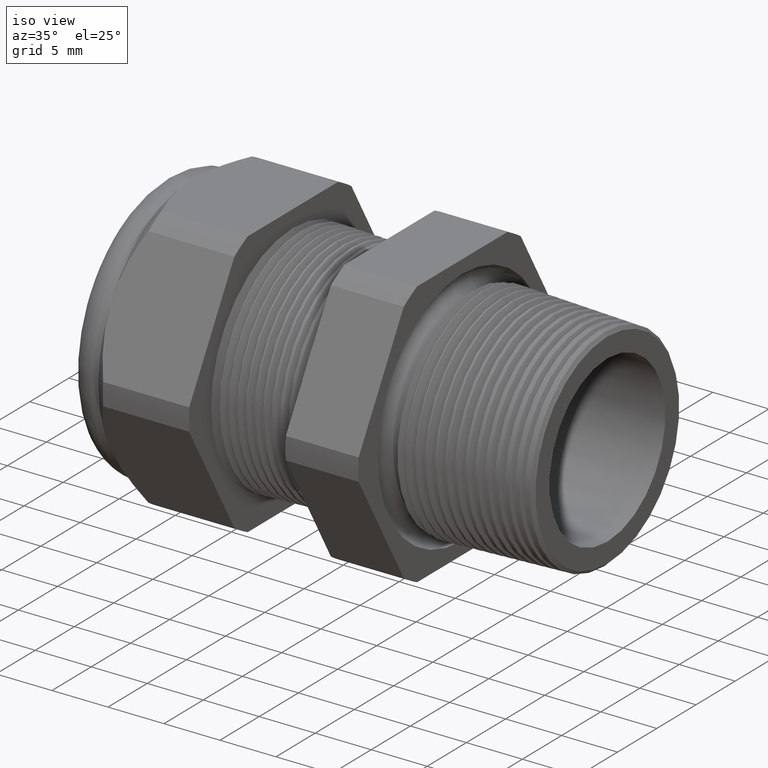
[diagram: clean part render]
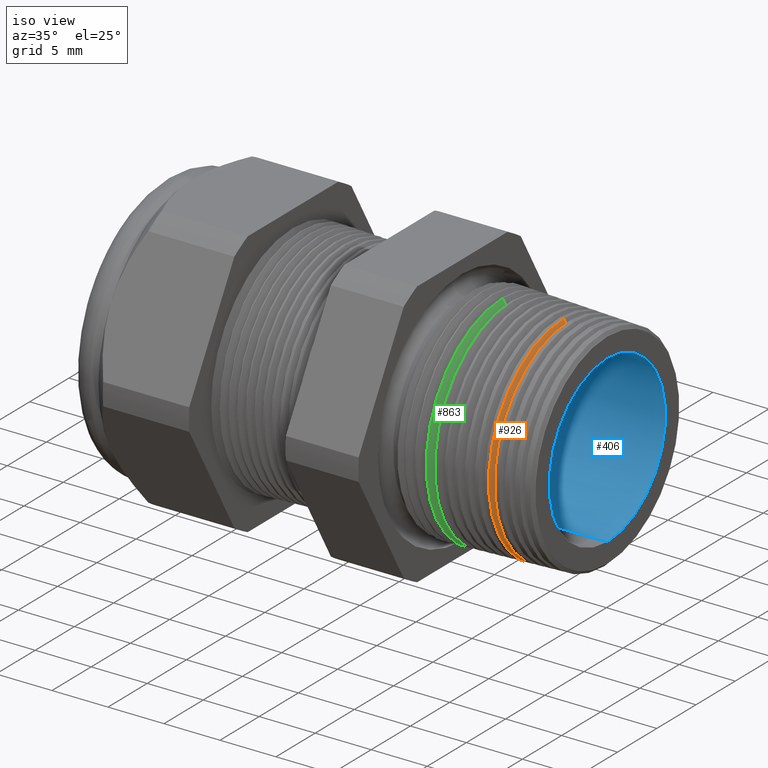
[diagram: same view with three faces highlighted in distinct colors, each labeled with its STEP entity id]
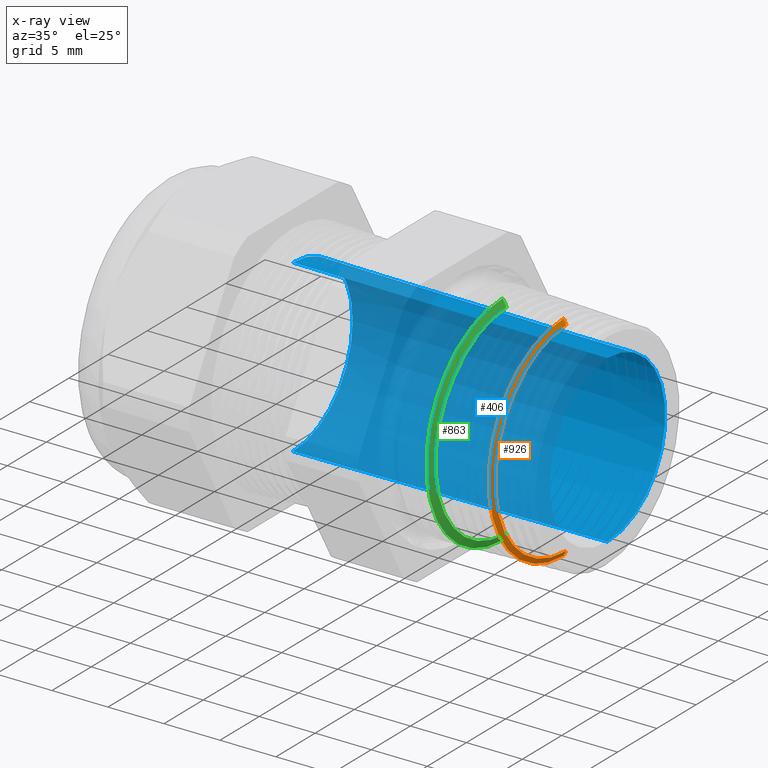
[diagram: x-ray of the same camera — body ghosted, the three highlighted faces saturated]
A machine part, iso view with three faces highlighted in distinct colors.
The next image is the same camera in x-ray (body ghosted, the three faces saturated) — at least one of them is partly hidden behind the body in this view.
Their STEP definitions:

[orange] entity #926 — the highlighted conical surface has half-angle 62 deg.
#67 = EDGE_CURVE ( 'NONE', #172, #237, #2103, .T. ) ;
#172 = VERTEX_POINT ( 'NONE', #2319 ) ;
#177 = EDGE_CURVE ( 'NONE', #1888, #237, #2308, .T. ) ;
#236 = EDGE_CURVE ( 'NONE', #1889, #172, #2435, .T. ) ;
#237 = VERTEX_POINT ( 'NONE', #2427 ) ;
#926 = ADVANCED_FACE ( 'NONE', ( #3540 ), #3539, .T. ) ;
#927 = EDGE_LOOP ( 'NONE', ( #928, #929, #931, #932 ) ) ;
#928 = ORIENTED_EDGE ( 'NONE', *, *, #177, .F. ) ;
#929 = ORIENTED_EDGE ( 'NONE', *, *, #930, .F. ) ;
#930 = EDGE_CURVE ( 'NONE', #1889, #1888, #3538, .T. ) ;
#931 = ORIENTED_EDGE ( 'NONE', *, *, #236, .T. ) ;
#932 = ORIENTED_EDGE ( 'NONE', *, *, #67, .T. ) ;
#1888 = VERTEX_POINT ( 'NONE', #5331 ) ;
#1889 = VERTEX_POINT ( 'NONE', #5330 ) ;
#2095 = DIRECTION ( 'NONE',  ( 0.0000000000000000000, 0.0000000000000000000, 1.000000000000000000 ) ) ;
#2096 = DIRECTION ( 'NONE',  ( 1.000000000000000000, 0.0000000000000000000, 0.0000000000000000000 ) ) ;
#2097 = CARTESIAN_POINT ( 'NONE',  ( 0.04662164460189877100, 0.0000000000000000000, 0.0000000000000000000 ) ) ;
#2098 = AXIS2_PLACEMENT_3D ( 'NONE', #2097, #2096, #2095 ) ;
#2103 = CIRCLE ( 'NONE', #2098, 0.3767535167376160300 ) ;
#2305 = DIRECTION ( 'NONE',  ( -0.4694715627859021900, 1.081298943409537900E-016, -0.8829475928589208800 ) ) ;
#2306 = VECTOR ( 'NONE', #2305, 39.37007874015748100 ) ;
#2307 = CARTESIAN_POINT ( 'NONE',  ( 0.04000000000000004900, 4.766411300050807300E-017, -0.3892070189845242000 ) ) ;
#2308 = LINE ( 'NONE', #2307, #2306 ) ;
#2319 = CARTESIAN_POINT ( 'NONE',  ( 0.04662164460189877100, 0.0000000000000000000, 0.3767535167376160300 ) ) ;
#2427 = CARTESIAN_POINT ( 'NONE',  ( 0.04662164460189877100, 4.616835429201469900E-017, -0.3767535167376160300 ) ) ;
#2428 = DIRECTION ( 'NONE',  ( -0.4694715627859021900, 0.0000000000000000000, 0.8829475928589208800 ) ) ;
#2429 = VECTOR ( 'NONE', #2428, 39.37007874015748100 ) ;
#2430 = CARTESIAN_POINT ( 'NONE',  ( 0.04000000000000004900, 0.0000000000000000000, 0.3892070189845242000 ) ) ;
#2435 = LINE ( 'NONE', #2430, #2429 ) ;
#3530 = DIRECTION ( 'NONE',  ( 0.0000000000000000000, 0.0000000000000000000, -1.000000000000000000 ) ) ;
#3531 = DIRECTION ( 'NONE',  ( 1.000000000000000000, 0.0000000000000000000, 0.0000000000000000000 ) ) ;
#3532 = CARTESIAN_POINT ( 'NONE',  ( 0.05626297198907897300, 0.0000000000000000000, 0.0000000000000000000 ) ) ;
#3533 = AXIS2_PLACEMENT_3D ( 'NONE', #3532, #3531, #3530 ) ;
#3534 = DIRECTION ( 'NONE',  ( 0.0000000000000000000, 0.0000000000000000000, 1.000000000000000000 ) ) ;
#3535 = DIRECTION ( 'NONE',  ( -1.000000000000000000, 0.0000000000000000000, 0.0000000000000000000 ) ) ;
#3536 = CARTESIAN_POINT ( 'NONE',  ( 0.04000000000000004900, 0.0000000000000000000, 0.0000000000000000000 ) ) ;
#3537 = AXIS2_PLACEMENT_3D ( 'NONE', #3536, #3535, #3534 ) ;
#3538 = CIRCLE ( 'NONE', #3533, 0.3586208171594783600 ) ;
#3539 = CONICAL_SURFACE ( 'NONE', #3537, 0.3892070189845242000, 1.082104136236471400 ) ;
#3540 = FACE_OUTER_BOUND ( 'NONE', #927, .T. ) ;
#5330 = CARTESIAN_POINT ( 'NONE',  ( 0.05626297198907897300, 0.0000000000000000000, 0.3586208171594783600 ) ) ;
#5331 = CARTESIAN_POINT ( 'NONE',  ( 0.05626297198907897300, 4.502869120910968100E-017, -0.3586208171594783600 ) ) ;

[blue] entity #406 — the highlighted conical surface has half-angle 0.446 deg.
#216 = EDGE_CURVE ( 'NONE', #1520, #1519, #2410, .T. ) ;
#406 = ADVANCED_FACE ( 'NONE', ( #2847 ), #2846, .F. ) ;
#407 = EDGE_LOOP ( 'NONE', ( #408, #409, #410, #411 ) ) ;
#408 = ORIENTED_EDGE ( 'NONE', *, *, #1522, .F. ) ;
#409 = ORIENTED_EDGE ( 'NONE', *, *, #216, .T. ) ;
#410 = ORIENTED_EDGE ( 'NONE', *, *, #1525, .T. ) ;
#411 = ORIENTED_EDGE ( 'NONE', *, *, #412, .F. ) ;
#412 = EDGE_CURVE ( 'NONE', #1542, #1539, #2840, .T. ) ;
#1519 = VERTEX_POINT ( 'NONE', #4624 ) ;
#1520 = VERTEX_POINT ( 'NONE', #4623 ) ;
#1522 = EDGE_CURVE ( 'NONE', #1520, #1542, #4622, .T. ) ;
#1525 = EDGE_CURVE ( 'NONE', #1519, #1539, #4618, .T. ) ;
#1539 = VERTEX_POINT ( 'NONE', #4649 ) ;
#1542 = VERTEX_POINT ( 'NONE', #4643 ) ;
#2406 = DIRECTION ( 'NONE',  ( 0.0000000000000000000, 0.0000000000000000000, -1.000000000000000000 ) ) ;
#2407 = DIRECTION ( 'NONE',  ( 1.000000000000000000, 0.0000000000000000000, 0.0000000000000000000 ) ) ;
#2408 = CARTESIAN_POINT ( 'NONE',  ( 0.2000000000000000400, 0.0000000000000000000, 0.0000000000000000000 ) ) ;
#2409 = AXIS2_PLACEMENT_3D ( 'NONE', #2408, #2407, #2406 ) ;
#2410 = CIRCLE ( 'NONE', #2409, 0.2913974265437366300 ) ;
#2837 = DIRECTION ( 'NONE',  ( 0.0000000000000000000, 0.0000000000000000000, -1.000000000000000000 ) ) ;
#2838 = DIRECTION ( 'NONE',  ( 1.000000000000000000, 0.0000000000000000000, 0.0000000000000000000 ) ) ;
#2839 = AXIS2_PLACEMENT_3D ( 'NONE', #2845, #2838, #2837 ) ;
#2840 = CIRCLE ( 'NONE', #2839, 0.2999999999999999900 ) ;
#2841 = DIRECTION ( 'NONE',  ( 0.0000000000000000000, 0.0000000000000000000, 1.000000000000000000 ) ) ;
#2842 = DIRECTION ( 'NONE',  ( -1.000000000000000000, 0.0000000000000000000, 0.0000000000000000000 ) ) ;
#2843 = CARTESIAN_POINT ( 'NONE',  ( -0.9054330708661418900, 0.0000000000000000000, 0.0000000000000000000 ) ) ;
#2844 = AXIS2_PLACEMENT_3D ( 'NONE', #2843, #2842, #2841 ) ;
#2845 = CARTESIAN_POINT ( 'NONE',  ( -0.9054330708661418900, 0.0000000000000000000, 0.0000000000000000000 ) ) ;
#2846 = CONICAL_SURFACE ( 'NONE', #2844, 0.2999999999999999900, 0.007781927309401279900 ) ;
#2847 = FACE_OUTER_BOUND ( 'NONE', #407, .T. ) ;
#4615 = DIRECTION ( 'NONE',  ( -0.9999697209564802900, 0.0000000000000000000, 0.007781848766137508500 ) ) ;
#4616 = VECTOR ( 'NONE', #4615, 39.37007874015748100 ) ;
#4617 = CARTESIAN_POINT ( 'NONE',  ( -0.9054330708661418900, 0.0000000000000000000, 0.2999999999999999900 ) ) ;
#4618 = LINE ( 'NONE', #4617, #4616 ) ;
#4619 = DIRECTION ( 'NONE',  ( -0.9999697209564802900, 9.530016182899079500E-019, -0.007781848766137508500 ) ) ;
#4620 = VECTOR ( 'NONE', #4619, 39.37007874015748100 ) ;
#4621 = CARTESIAN_POINT ( 'NONE',  ( -0.9054330708661418900, 3.673940397442058900E-017, -0.2999999999999999900 ) ) ;
#4622 = LINE ( 'NONE', #4621, #4620 ) ;
#4623 = CARTESIAN_POINT ( 'NONE',  ( 0.2000000000000000400, 3.621264827203845100E-017, -0.2913974265437366300 ) ) ;
#4624 = CARTESIAN_POINT ( 'NONE',  ( 0.2000000000000000400, 0.0000000000000000000, 0.2913974265437366300 ) ) ;
#4643 = CARTESIAN_POINT ( 'NONE',  ( -0.9054330708661418900, 3.673940397442058900E-017, -0.2999999999999999900 ) ) ;
#4649 = CARTESIAN_POINT ( 'NONE',  ( -0.9054330708661418900, 0.0000000000000000000, 0.2999999999999999900 ) ) ;

[green] entity #863 — the highlighted conical surface has half-angle 62 deg.
#48 = EDGE_CURVE ( 'NONE', #1438, #1316, #2074, .T. ) ;
#840 = ORIENTED_EDGE ( 'NONE', *, *, #1318, .F. ) ;
#841 = ORIENTED_EDGE ( 'NONE', *, *, #842, .F. ) ;
#842 = EDGE_CURVE ( 'NONE', #1326, #1244, #3463, .T. ) ;
#843 = ORIENTED_EDGE ( 'NONE', *, *, #1440, .T. ) ;
#844 = ORIENTED_EDGE ( 'NONE', *, *, #48, .T. ) ;
#863 = ADVANCED_FACE ( 'NONE', ( #3443 ), #3438, .T. ) ;
#864 = EDGE_LOOP ( 'NONE', ( #840, #841, #843, #844 ) ) ;
#1244 = VERTEX_POINT ( 'NONE', #4115 ) ;
#1316 = VERTEX_POINT ( 'NONE', #4203 ) ;
#1318 = EDGE_CURVE ( 'NONE', #1244, #1316, #4201, .T. ) ;
#1326 = VERTEX_POINT ( 'NONE', #4245 ) ;
#1438 = VERTEX_POINT ( 'NONE', #4477 ) ;
#1440 = EDGE_CURVE ( 'NONE', #1326, #1438, #4476, .T. ) ;
#2070 = DIRECTION ( 'NONE',  ( 0.0000000000000000000, 0.0000000000000000000, 1.000000000000000000 ) ) ;
#2071 = DIRECTION ( 'NONE',  ( 1.000000000000000000, 0.0000000000000000000, 0.0000000000000000000 ) ) ;
#2072 = CARTESIAN_POINT ( 'NONE',  ( -0.1673513421592405000, 0.0000000000000000000, 0.0000000000000000000 ) ) ;
#2073 = AXIS2_PLACEMENT_3D ( 'NONE', #2072, #2071, #2070 ) ;
#2074 = CIRCLE ( 'NONE', #2073, 0.3842256180857610000 ) ;
#3433 = DIRECTION ( 'NONE',  ( 0.0000000000000000000, 0.0000000000000000000, 1.000000000000000000 ) ) ;
#3434 = DIRECTION ( 'NONE',  ( -1.000000000000000000, 0.0000000000000000000, 0.0000000000000000000 ) ) ;
#3435 = CARTESIAN_POINT ( 'NONE',  ( -0.1699999999999999600, 0.0000000000000000000, 0.0000000000000000000 ) ) ;
#3436 = AXIS2_PLACEMENT_3D ( 'NONE', #3435, #3434, #3433 ) ;
#3438 = CONICAL_SURFACE ( 'NONE', #3436, 0.3892070189845242000, 1.082104136236471400 ) ;
#3443 = FACE_OUTER_BOUND ( 'NONE', #864, .T. ) ;
#3457 = DIRECTION ( 'NONE',  ( 0.0000000000000000000, 0.0000000000000000000, -1.000000000000000000 ) ) ;
#3458 = DIRECTION ( 'NONE',  ( 1.000000000000000000, 0.0000000000000000000, 0.0000000000000000000 ) ) ;
#3459 = CARTESIAN_POINT ( 'NONE',  ( -0.1537370280109210400, 0.0000000000000000000, 0.0000000000000000000 ) ) ;
#3460 = AXIS2_PLACEMENT_3D ( 'NONE', #3459, #3458, #3457 ) ;
#3463 = CIRCLE ( 'NONE', #3460, 0.3586208171594783600 ) ;
#4115 = CARTESIAN_POINT ( 'NONE',  ( -0.1537370280109210400, 4.548622545905520400E-017, -0.3586208171594783600 ) ) ;
#4198 = DIRECTION ( 'NONE',  ( -0.4694715627859021900, 1.081298943409537900E-016, -0.8829475928589208800 ) ) ;
#4199 = VECTOR ( 'NONE', #4198, 39.37007874015748100 ) ;
#4200 = CARTESIAN_POINT ( 'NONE',  ( -0.1699999999999999600, 4.766411300050807300E-017, -0.3892070189845242000 ) ) ;
#4201 = LINE ( 'NONE', #4200, #4199 ) ;
#4203 = CARTESIAN_POINT ( 'NONE',  ( -0.1673513421592405000, 4.706533823606528100E-017, -0.3842256180857610000 ) ) ;
#4245 = CARTESIAN_POINT ( 'NONE',  ( -0.1537370280109210400, 0.0000000000000000000, 0.3586208171594783600 ) ) ;
#4473 = DIRECTION ( 'NONE',  ( -0.4694715627859021900, 0.0000000000000000000, 0.8829475928589208800 ) ) ;
#4474 = VECTOR ( 'NONE', #4473, 39.37007874015748100 ) ;
#4475 = CARTESIAN_POINT ( 'NONE',  ( -0.1699999999999999600, 0.0000000000000000000, 0.3892070189845242000 ) ) ;
#4476 = LINE ( 'NONE', #4475, #4474 ) ;
#4477 = CARTESIAN_POINT ( 'NONE',  ( -0.1673513421592405000, 0.0000000000000000000, 0.3842256180857610000 ) ) ;